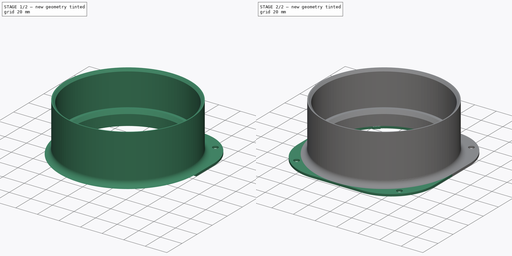
[diagram: build sequence overview — one tinted view per stage of 2, left to right]
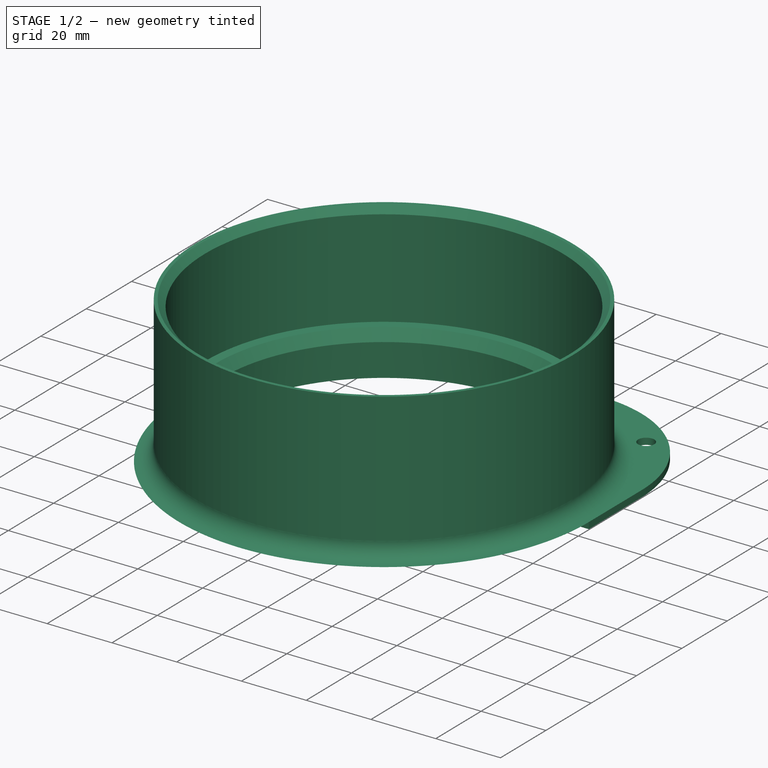
[diagram: stage 1 of 2 — iso view after this stage's code; geometry added in this stage tinted green]
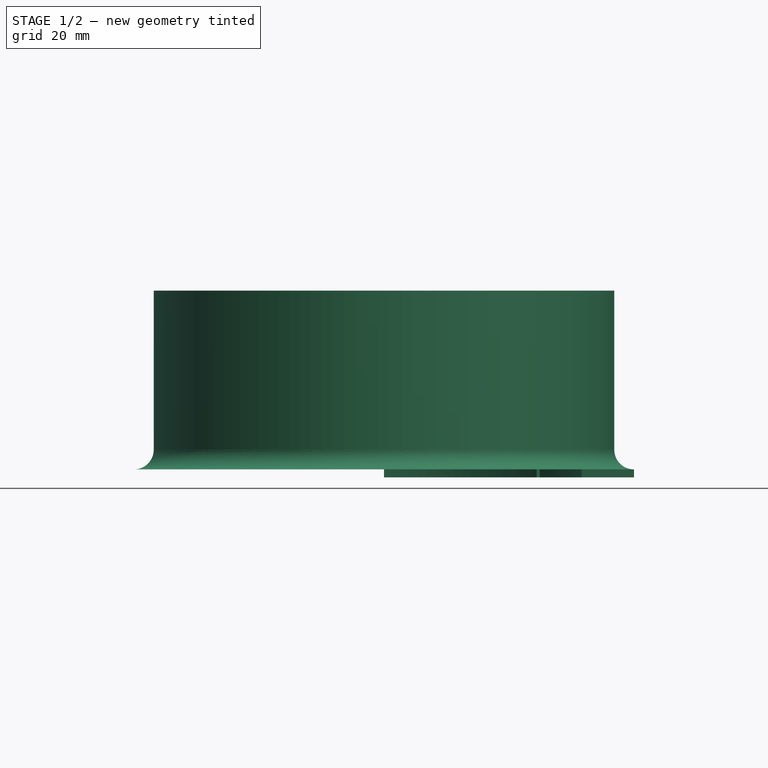
[diagram: stage 1 of 2 — front view after this stage's code; geometry added in this stage tinted green]
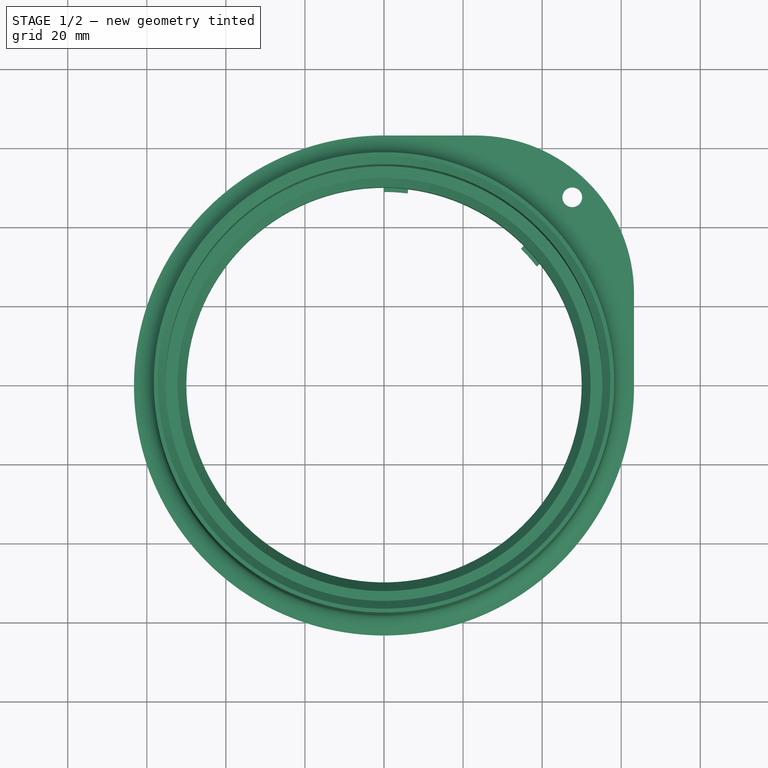
[diagram: stage 1 of 2 — top view after this stage's code; geometry added in this stage tinted green]
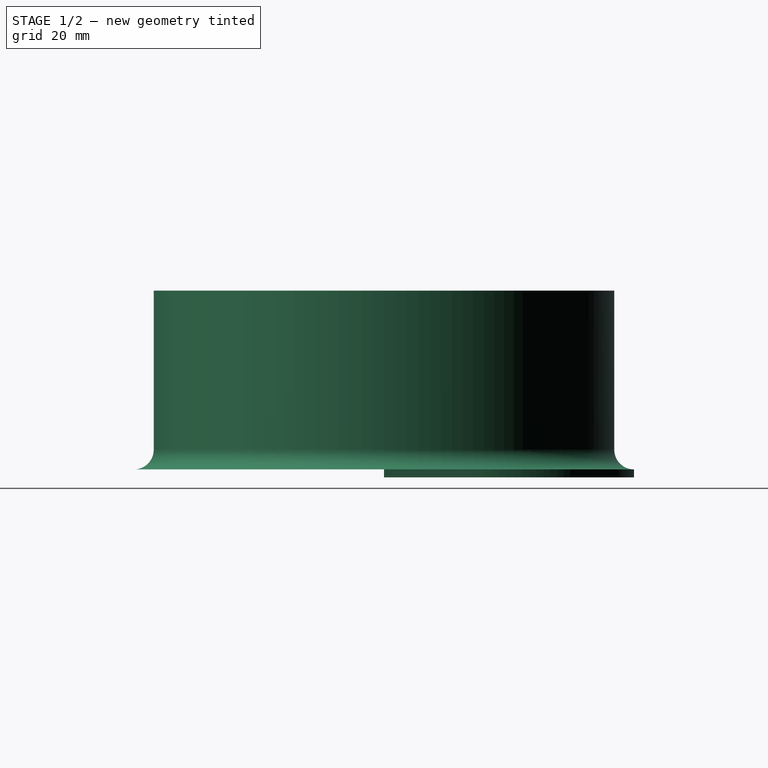
[diagram: stage 1 of 2 — right view after this stage's code; geometry added in this stage tinted green]
FCSTD DOCUMENT  (FreeCAD 0.18.4R)
Label: 2
License: All rights reserved
LicenseURL: http://en.wikipedia.org/wiki/All_rights_reserved
objects: Sketcher::SketchObject×2, PartDesign::Revolution×1, PartDesign::Pad×1, PartDesign::PolarPattern×1, PartDesign::Plane×1, PartDesign::Body×1
note: 9 computed .brp shape members not serialized (recipe doc carries the construction recipe); baked Part::Feature solids carry a one-line shape summary decoded from their .brp

FEATURE [Sketcher::SketchObject] Sketch
  MapMode = 5
  Placement = pos=(0,0,0) rot=(1,0,0;1.5708rad)
  Support = -> [XZ_Plane]
  constraints (29):
    c: PointOnObject(g8,g-1)
    c: Vertical(g0)
    c: Coincident(g0,g1)
    c: Coincident(g1,g2)
    c: Horizontal(g2)
    c: Coincident(g2,g3)
    c: Vertical(g3)
    c: Distance(g0,g-2) = 55.25
    c: Angle(g0,g1) = 2.35619
    c: Distance(g0,g3) = 3
    c: Distance(g2) = 1
    c: Distance(g0) = 30
    c: Coincident(g3,g4)
    c: Tangent(g4,g3)
    c: Diameter(g4) = 10
    c: Coincident(g5,g0)
    c: Horizontal(g5)
    c: Coincident(g6,g5)
    c: Coincident(g7,g6)
    c: PointOnObject(g7,g-1)
    c: Vertical(g7)
    c: Coincident(g8,g7)
    c: Angle(g7,g6) = 2.53073
    c: Distance(g7,g6) = 10
    c: Distance(g7,g-1) = 50
    c: Distance(g5) = 3
    c: Coincident(g8,g4)
    c: Tangent(g4,g8)
    c: Distance(g8) = 13.25
FEATURE [Sketcher::SketchObject] Sketch001
  MapMode = 5
  Support = -> [XY_Plane]
  constraints (56):
    c: Coincident(g0,g-1)
    c: PointOnObject(g0,g-2)
    c: Coincident(g1,g0)
    c: Coincident(g2,g0)
    c: Coincident(g3,g0)
    c: PointOnObject(g3,g-1)
    c: Coincident(g4,g0)
    c: Coincident(g4,g2)
    c: Coincident(g5,g1)
    c: Coincident(g5,g2)
    c: Coincident(g6,g1)
    c: Coincident(g6,g3)
    c: Perpendicular(g3,g6)
    c: Perpendicular(g2,g5)
    c: Perpendicular(g2,g4)
    c: Equal(g1,g0)
    c: Equal(g2,g3)
    c: Coincident(g7,g3)
    c: PointOnObject(g7,g-1)
    c: Coincident(g8,g0)
    c: PointOnObject(g8,g-2)
    c: Coincident(g9,g8)
    c: Horizontal(g9)
    c: Coincident(g10,g7)
    c: Vertical(g10)
    c: Coincident(g11,g9)
    c: Coincident(g11,g10)
    c: Tangent(g9,g11)
    c: Tangent(g11,g10)
    c: Coincident(g13,g12)
    c: PointOnObject(g13,g8)
    c: Horizontal(g13)
    c: Coincident(g14,g12)
    c: PointOnObject(g14,g7)
    c: Vertical(g14)
    c: Equal(g14,g13)
    c: Distance(g14) = 47.625
    c: Coincident(g15,g0)
    c: Angle(g-1,g15) = 0.785398
    c: Coincident(g16,g0)
    c: Coincident(g16,g0)
    c: Coincident(g17,g1)
    c: Coincident(g17,g1)
    c: Equal(g17,g16)
    c: PointOnObject(g1,g15)
    c: Diameter(g12) = 5
    c: PointOnObject(g11,g15)
    c: Diameter(g3) = 100
    c: Diameter(g1) = 98
    c: Distance(g17) = 6
    c: Distance(g7) = 13.25
    c: PointOnObject(g18,g11)
    c: PointOnObject(g19,g12)
    c: PointOnObject(g19,g15)
    c: PointOnObject(g18,g15)
    c: Distance(g19,g18) = 3
FEATURE [PartDesign::Revolution] Revolution
  Angle = 360
  Axis = (0,2e-16,1)
  Base = (0,0,0)
  Placement = pos=(0,0,0) rot=(1,0,0;1.5708rad)
  Profile = -> Sketch
  ReferenceAxis = -> Sketch [V_Axis]
  Reversed = true
FEATURE [PartDesign::Pad] Pad
  BaseFeature = -> Revolution
  Length = 2
  Length2 = 100
  Placement = pos=(0,0,0) rot=(1,0,0;1.5708rad)
  Profile = -> Sketch001
  Reversed = true
  Type = 0
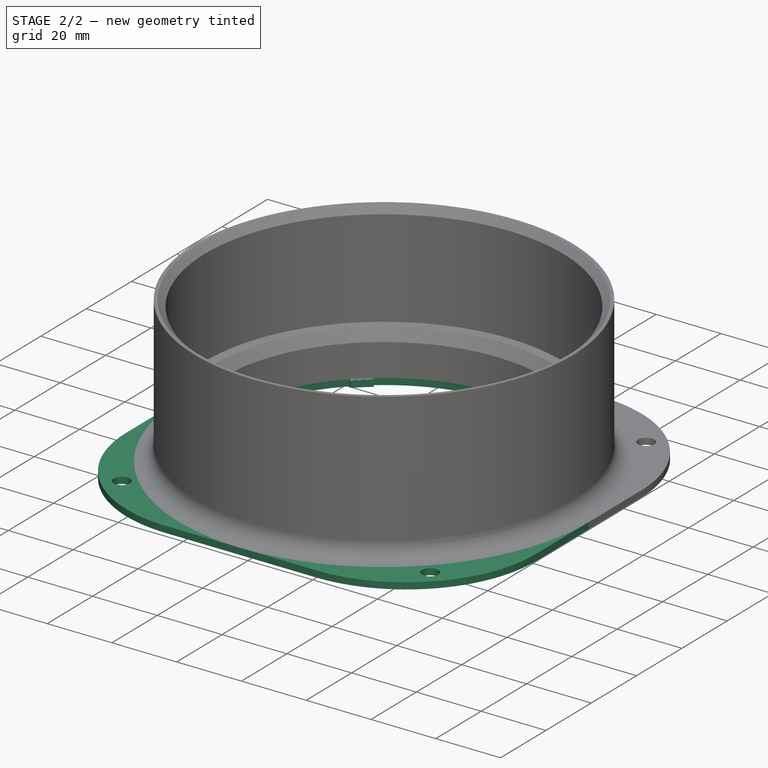
[diagram: stage 2 of 2 — iso view after this stage's code; geometry added in this stage tinted green]
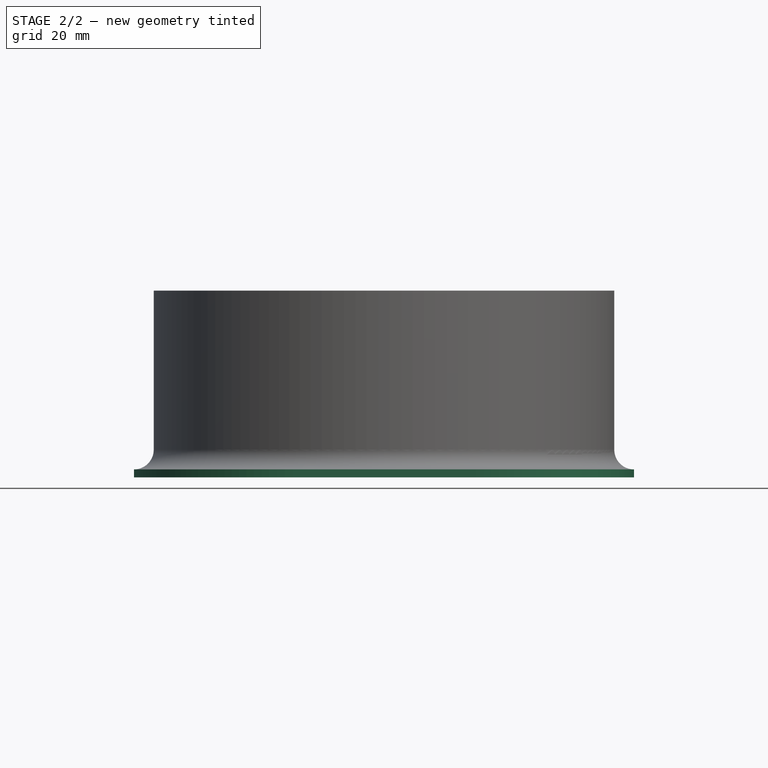
[diagram: stage 2 of 2 — front view after this stage's code; geometry added in this stage tinted green]
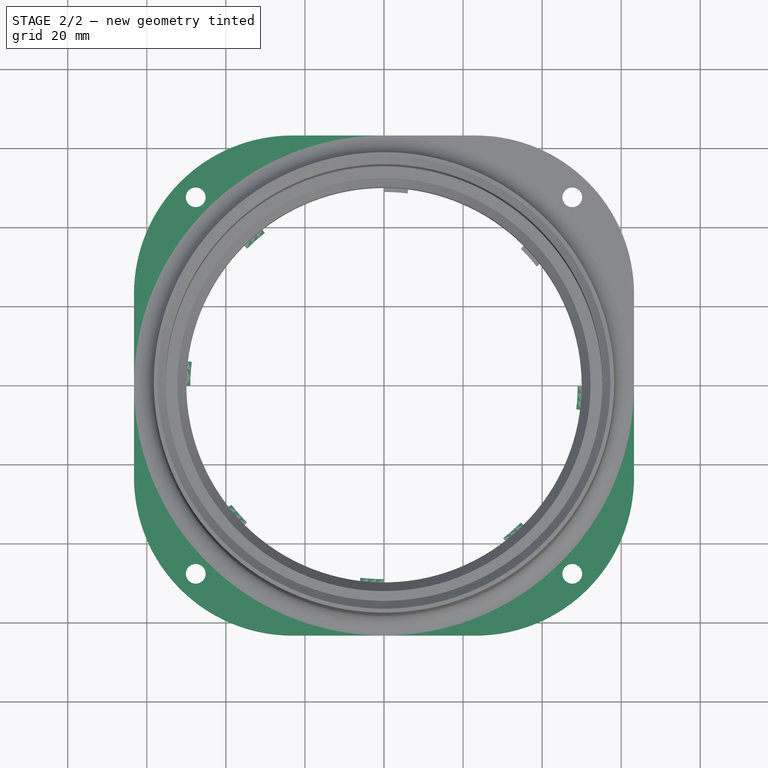
[diagram: stage 2 of 2 — top view after this stage's code; geometry added in this stage tinted green]
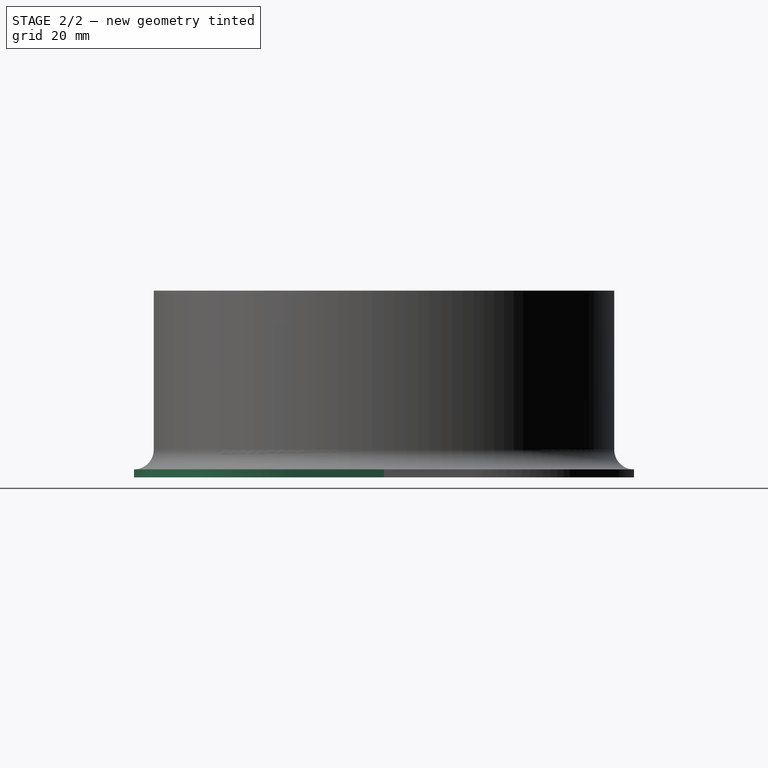
[diagram: stage 2 of 2 — right view after this stage's code; geometry added in this stage tinted green]
FEATURE [PartDesign::PolarPattern] PolarPattern
  Angle = 360
  Axis = -> Sketch001 [N_Axis]
  BaseFeature = -> Pad
  Occurrences = 4
  Originals = -> [Pad]
  Placement = pos=(0,0,0) rot=(1,0,0;1.5708rad)
FEATURE [PartDesign::Plane] DatumPlane
  AttachmentOffset = pos=(0,0,0) rot=(0,-1,0;1.5708rad)
  Length = 198.775
  MapMode = 7
  Placement = pos=(-34.6482,34.6482,-2) rot=(0.281085,0.678598,0.678598;2.59356rad)
  ResizeMode = 0
  Support = -> [PolarPattern]
  Width = 75.0905
FEATURE [PartDesign::Body] Body
  Group = -> [Sketch,Sketch001,Revolution,Pad,PolarPattern,DatumPlane]
  Origin = -> Origin
  Tip = -> PolarPattern
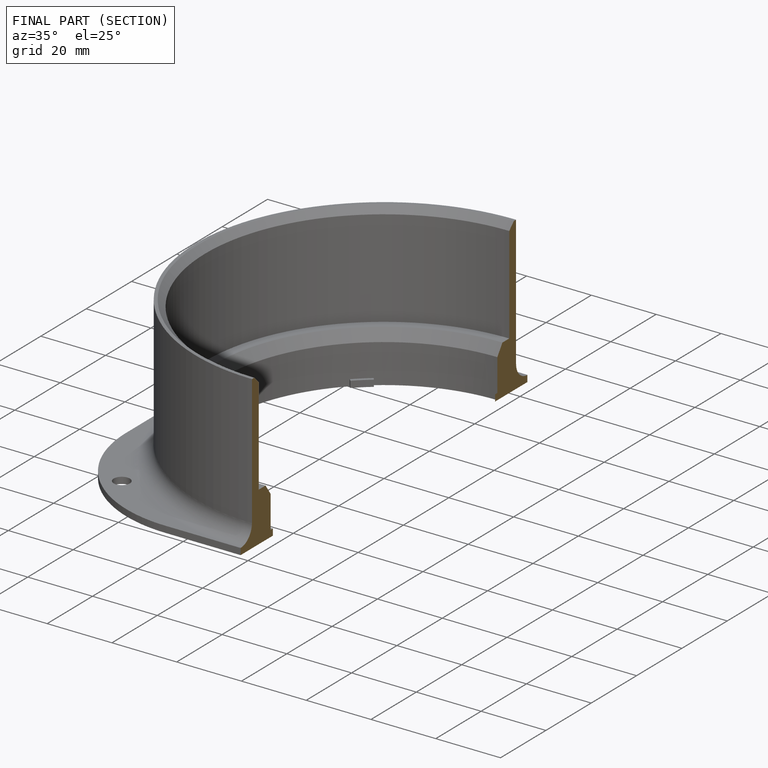
[diagram: finished part — half-section view (interior)]
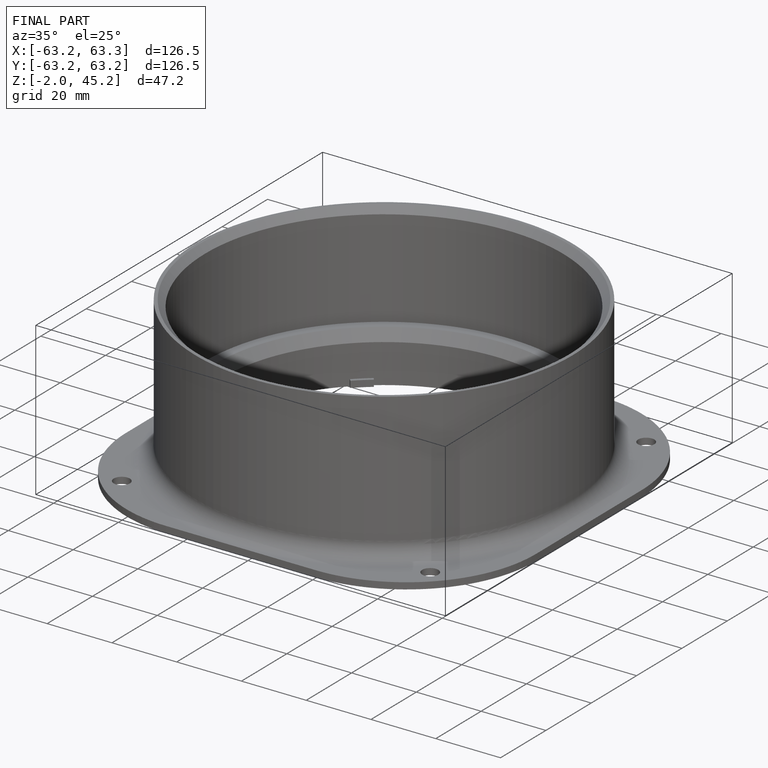
[diagram: finished part — iso view with bounding-box wireframe]
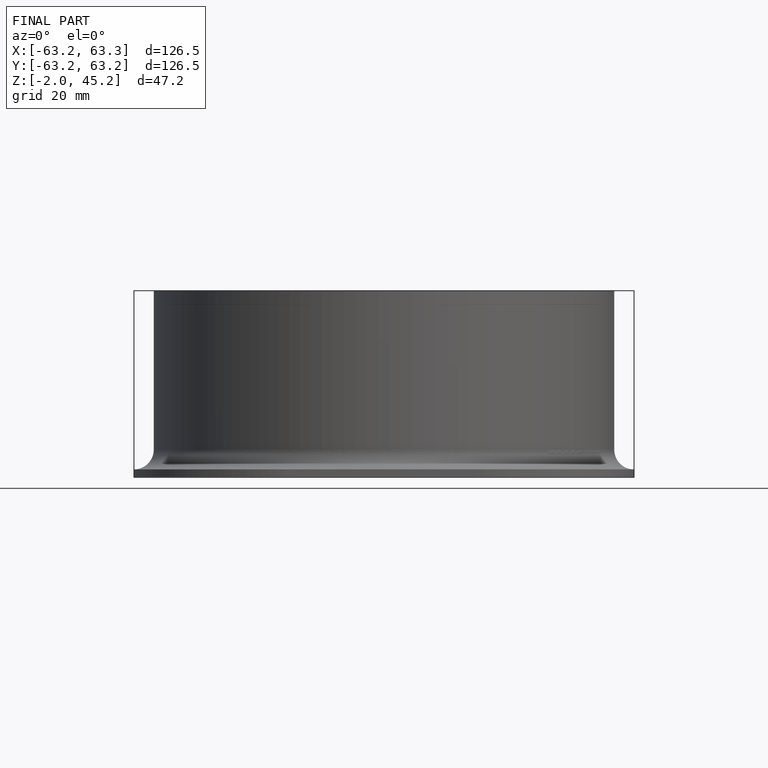
[diagram: finished part — front view with bounding-box wireframe]
